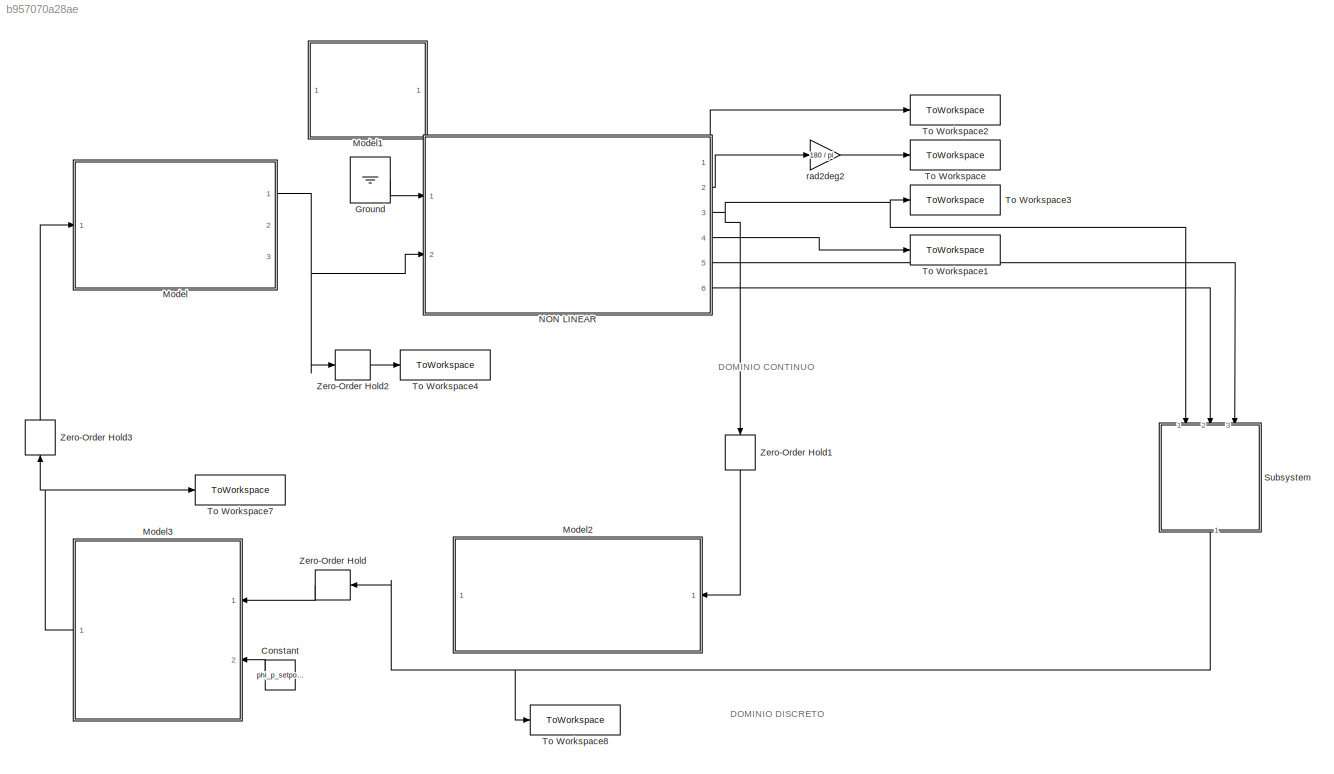
MODEL slx_b957070a28ae
KIND model
CONFIG AbsTol = auto
CONFIG EnableMultiTasking = off
CONFIG FixedStep = Ts
CONFIG MaxStep = auto
CONFIG MinStep = auto
CONFIG RelTol = 1e-3
CONFIG SampleTimeConstraint = Unconstrained
CONFIG Solver = FixedStepAuto
CONFIG SolverName = FixedStepAuto
CONFIG StartTime = 0.0
CONFIG StopTime = t_end
BLOCK [Constant] Constant
  Value = phi_p_setpoint
BLOCK [Ground] Ground
BLOCK [ModelReference] Model
  ModelNameDialog = MotorModelDiscrete.slx
  ModelReferenceVersion = 1.30
  Ports = [1, 3]
BLOCK [ModelReference] Model1
  Commented = on
  ModelNameDialog = MotorModelContinuos.slx
  ModelReferenceVersion = 1.27
  Ports = [1, 1]
BLOCK [ModelReference] Model2
  ModelNameDialog = sensor.slx
  ModelReferenceVersion = 1.9
  Ports = [1, 1]
BLOCK [ModelReference] Model3
  ModelNameDialog = controller.slx
  ModelReferenceVersion = 1.27
  Ports = [2, 1]
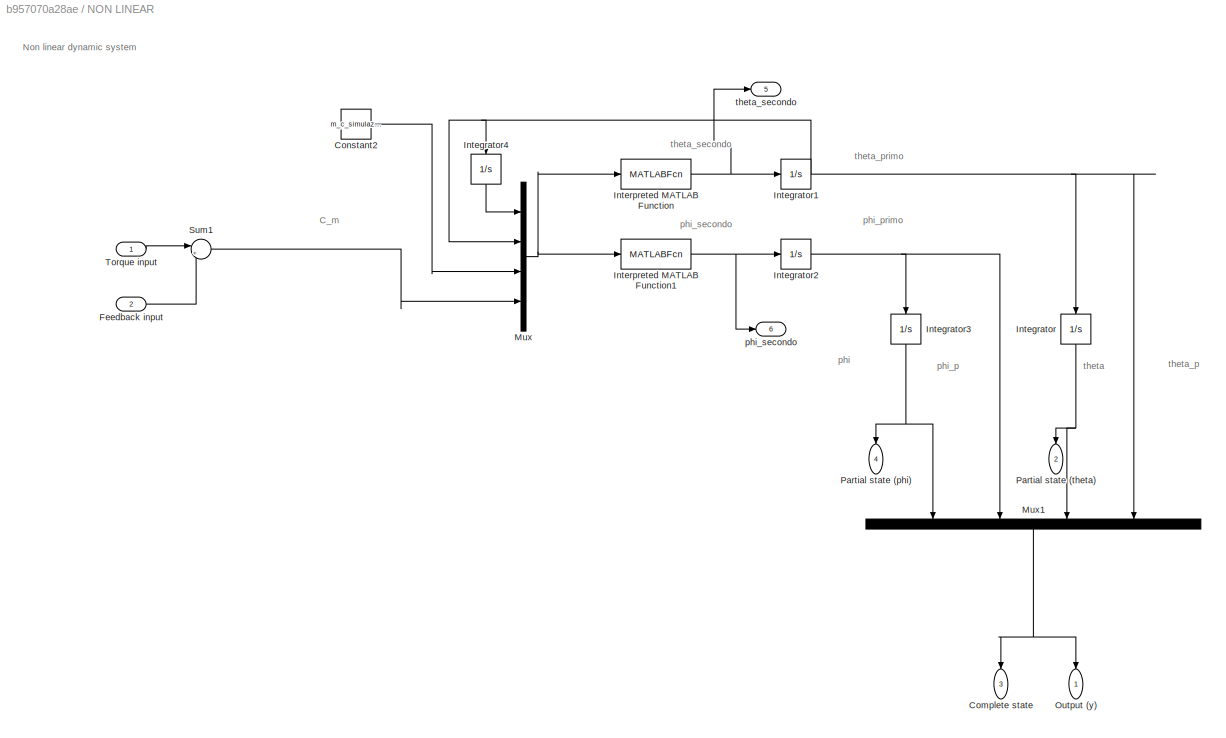
BLOCK [SubSystem] NON LINEAR
  Ports = [2, 6]
  RequestExecContextInheritance = off
BLOCK [Outport] NON LINEAR/Complete state 
  IconDisplay = Port number
  Port = 3
BLOCK [Constant] NON LINEAR/Constant2
  Value = m_c_simulazione
BLOCK [Inport] NON LINEAR/Feedback input
  IconDisplay = Port number
  Port = 2
  PortDimensions = 1
BLOCK [Integrator] NON LINEAR/Integrator
  InitialCondition = theta_iniziale
  Ports = [1, 1]
BLOCK [Integrator] NON LINEAR/Integrator1
  InitialCondition = theta_p_iniziale
  LowerSaturationLimit = -100
  Ports = [1, 1]
  UpperSaturationLimit = 100
BLOCK [Integrator] NON LINEAR/Integrator2
  InitialCondition = phi_p_iniziale
  Ports = [1, 1]
BLOCK [Integrator] NON LINEAR/Integrator3
  InitialCondition = phi_iniziale
  Ports = [1, 1]
BLOCK [Integrator] NON LINEAR/Integrator4
  InitialCondition = theta_iniziale
  Ports = [1, 1]
BLOCK [MATLABFcn] NON LINEAR/Interpreted MATLAB Function
  MATLABFcn = theta_secondo(u(3),u(1),u(2),u(4))
  OutputDimensions = 1
  Ports = [1, 1]
BLOCK [MATLABFcn] NON LINEAR/Interpreted MATLAB Function1
  MATLABFcn = phi_secondo(u(3),u(1),u(2),u(4))
  OutputDimensions = 1
  Ports = [1, 1]
BLOCK [Mux] NON LINEAR/Mux
  DisplayOption = signals
  Ports = [4, 1]
BLOCK [Mux] NON LINEAR/Mux1
  DisplayOption = bar
  Ports = [4, 1]
BLOCK [Outport] NON LINEAR/Output (y)
  IconDisplay = Port number
BLOCK [Outport] NON LINEAR/Partial state (phi)
  IconDisplay = Port number
  Port = 4
BLOCK [Outport] NON LINEAR/Partial state (theta)
  IconDisplay = Port number
  Port = 2
BLOCK [Sum] NON LINEAR/Sum1
  IconShape = round
  InputSameDT = off
  Inputs = |++
  OutDataTypeStr = Inherit: Inherit via internal rule
  Ports = [2, 1]
  SaturateOnIntegerOverflow = off
BLOCK [Inport] NON LINEAR/Torque input
  IconDisplay = Port number
  PortDimensions = 1
BLOCK [Outport] NON LINEAR/phi_secondo
  IconDisplay = Port number
  Port = 6
BLOCK [Outport] NON LINEAR/theta_secondo
  IconDisplay = Port number
  Port = 5
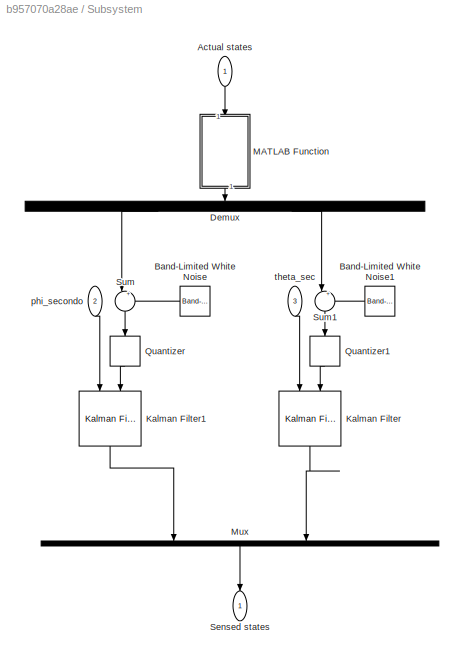
BLOCK [SubSystem] Subsystem
  Ports = [3, 1]
  RequestExecContextInheritance = off
BLOCK [Inport] Subsystem/Actual states
  IconDisplay = Port number
  PortDimensions = 4
  SampleTime = Ts
BLOCK [Reference] Subsystem/Band-Limited White Noise  REF=simulink/Sources/Band-Limited
White Noise
  Ports = [0, 1]
  SourceBlock = simulink/Sources/Band-Limited\nWhite Noise
  SourceProductBaseCode = SL
  SourceProductName = Simulink
  SourceType = Band-Limited White Noise.
BLOCK [Reference] Subsystem/Band-Limited White Noise1  REF=simulink/Sources/Band-Limited
White Noise
  Ports = [0, 1]
  SourceBlock = simulink/Sources/Band-Limited\nWhite Noise
  SourceProductBaseCode = SL
  SourceProductName = Simulink
  SourceType = Band-Limited White Noise.
BLOCK [Demux] Subsystem/Demux
  DisplayOption = bar
  Outputs = 2
  Ports = [1, 2]
BLOCK [Reference] Subsystem/Kalman Filter  REF=ctrlSharedLib/Kalman Filter
  Ports = [2, 1]
  SourceBlock = ctrlSharedLib/Kalman Filter
  SourceProductBaseCode = CT
  SourceProductName = Control System Toolbox
  SourceType = ctrlKalmanFilter
BLOCK [Reference] Subsystem/Kalman Filter1  REF=ctrlSharedLib/Kalman Filter
  Ports = [2, 1]
  SourceBlock = ctrlSharedLib/Kalman Filter
  SourceProductBaseCode = CT
  SourceProductName = Control System Toolbox
  SourceType = ctrlKalmanFilter
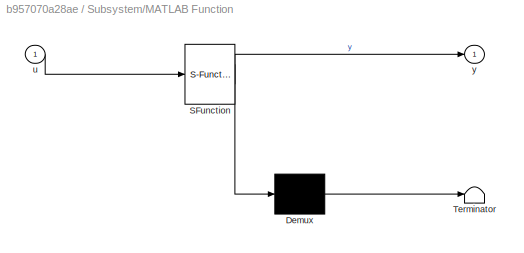
BLOCK [SubSystem] Subsystem/MATLAB Function
  ErrorFcn = Stateflow.Translate.translate
  PermitHierarchicalResolution = ExplicitOnly
  Ports = [1, 1]
  RequestExecContextInheritance = off
  SFBlockType = MATLAB Function
  TreatAsAtomicUnit = on
BLOCK [Demux] Subsystem/MATLAB Function/ Demux 
  Outputs = 1
  Ports = [1, 1]
BLOCK [S-Function] Subsystem/MATLAB Function/ SFunction 
  EnableBusSupport = on
  FunctionName = sf_sfun
  PortCounts = [1 2]
  Ports = [1, 2]
  SFcnIsStateOwnerBlock = off
  SFunctionDeploymentMode = off
  Tag = Stateflow S-Function 4
BLOCK [Terminator] Subsystem/MATLAB Function/ Terminator 
BLOCK [Inport] Subsystem/MATLAB Function/u
  IconDisplay = Port number
BLOCK [Outport] Subsystem/MATLAB Function/y
  IconDisplay = Port number
BLOCK [Mux] Subsystem/Mux
  DisplayOption = bar
  Inputs = 2
  Ports = [2, 1]
BLOCK [Quantizer] Subsystem/Quantizer
  QuantizationInterval = 1/sensitivity_encoder
BLOCK [Quantizer] Subsystem/Quantizer1
  QuantizationInterval = 1/sensitivity_giroscopio
BLOCK [Outport] Subsystem/Sensed states
  IconDisplay = Port number
BLOCK [Sum] Subsystem/Sum
  IconShape = round
  InputSameDT = off
  Inputs = |++
  OutDataTypeStr = Inherit: Inherit via internal rule
  Ports = [2, 1]
  SaturateOnIntegerOverflow = off
BLOCK [Sum] Subsystem/Sum1
  IconShape = round
  InputSameDT = off
  Inputs = |++
  OutDataTypeStr = Inherit: Inherit via internal rule
  Ports = [2, 1]
  SaturateOnIntegerOverflow = off
BLOCK [Inport] Subsystem/phi_secondo
  IconDisplay = Port number
  Port = 2
  PortDimensions = 1
  SampleTime = Ts
BLOCK [Inport] Subsystem/theta_sec 
  IconDisplay = Port number
  Port = 3
  PortDimensions = 1
  SampleTime = Ts
BLOCK [ToWorkspace] To Workspace
  FixptAsFi = on
  MaxDataPoints = inf
  Ports = [1]
  SampleTime = -1
  VariableName = theta_Clamped
BLOCK [ToWorkspace] To Workspace1
  FixptAsFi = on
  MaxDataPoints = inf
  Ports = [1]
  SampleTime = -1
  VariableName = phi_Clamped
BLOCK [ToWorkspace] To Workspace2
  FixptAsFi = on
  MaxDataPoints = inf
  Ports = [1]
  SampleTime = -1
  VariableName = Output
BLOCK [ToWorkspace] To Workspace3
  FixptAsFi = on
  MaxDataPoints = inf
  Ports = [1]
  SampleTime = -1
  VariableName = completeState
BLOCK [ToWorkspace] To Workspace4
  FixptAsFi = on
  MaxDataPoints = inf
  Ports = [1]
  SampleTime = -1
  VariableName = actualTorque
BLOCK [ToWorkspace] To Workspace7
  FixptAsFi = on
  MaxDataPoints = inf
  Ports = [1]
  SampleTime = -1
  VariableName = torqueRequested
BLOCK [ToWorkspace] To Workspace8
  FixptAsFi = on
  MaxDataPoints = inf
  Ports = [1]
  SampleTime = -1
  VariableName = sensor_state
BLOCK [ZeroOrderHold] Zero-Order Hold
  SampleTime = Ts
BLOCK [ZeroOrderHold] Zero-Order Hold1
  SampleTime = Ts
BLOCK [ZeroOrderHold] Zero-Order Hold2
  SampleTime = Ts
BLOCK [ZeroOrderHold] Zero-Order Hold3
  SampleTime = Ts
BLOCK [Gain] rad2deg2
  Gain = 180 / pi
  OutDataTypeStr = Inherit: Inherit via internal rule
  ParamDataTypeStr = Inherit: Inherit via internal rule
  SaturateOnIntegerOverflow = off
ANNOTATION (root): DOMINIO CONTINUO
ANNOTATION (root): DOMINIO DISCRETO
ANNOTATION NON LINEAR: Non linear dynamic system
ANNOTATION NON LINEAR: C_m
ANNOTATION NON LINEAR: phi
ANNOTATION NON LINEAR: phi_p
ANNOTATION NON LINEAR: phi_primo
ANNOTATION NON LINEAR: phi_secondo
ANNOTATION NON LINEAR: theta
ANNOTATION NON LINEAR: theta_p
ANNOTATION NON LINEAR: theta_primo
ANNOTATION NON LINEAR: theta_secondo
LINE Constant:1 -> Model3:2
LINE Ground:1 -> NON LINEAR:1
NET Model3:1 -> To Workspace7:1, Zero-Order Hold3:1
NET Model:1 -> NON LINEAR:2, Zero-Order Hold2:1
LINE NON LINEAR/Constant2:1 -> NON LINEAR/Mux:3
LINE NON LINEAR/Feedback input:1 -> NON LINEAR/Sum1:2
NET NON LINEAR/Integrator1:1 -> NON LINEAR/Integrator4:1, NON LINEAR/Integrator:1, NON LINEAR/Mux1:4, NON LINEAR/Mux:2
NET NON LINEAR/Integrator2:1 -> NON LINEAR/Integrator3:1, NON LINEAR/Mux1:2
NET NON LINEAR/Integrator3:1 -> NON LINEAR/Mux1:1, NON LINEAR/Partial state (phi):1
LINE NON LINEAR/Integrator4:1 -> NON LINEAR/Mux:1
NET NON LINEAR/Integrator:1 -> NON LINEAR/Mux1:3, NON LINEAR/Partial state (theta):1
NET NON LINEAR/Interpreted MATLAB Function1:1 -> NON LINEAR/Integrator2:1, NON LINEAR/phi_secondo:1
NET NON LINEAR/Interpreted MATLAB Function:1 -> NON LINEAR/Integrator1:1, NON LINEAR/theta_secondo:1
NET NON LINEAR/Mux1:1 -> NON LINEAR/Complete state :1, NON LINEAR/Output (y):1
NET NON LINEAR/Mux:1 -> NON LINEAR/Interpreted MATLAB Function1:1, NON LINEAR/Interpreted MATLAB Function:1
LINE NON LINEAR/Sum1:1 -> NON LINEAR/Mux:4
LINE NON LINEAR/Torque input:1 -> NON LINEAR/Sum1:1
LINE NON LINEAR:1 -> To Workspace2:1
LINE NON LINEAR:2 -> rad2deg2:1
NET NON LINEAR:3 -> Subsystem:1, To Workspace3:1, Zero-Order Hold1:1
LINE NON LINEAR:4 -> To Workspace1:1
LINE NON LINEAR:5 -> Subsystem:3
LINE NON LINEAR:6 -> Subsystem:2
LINE Subsystem/Actual states:1 -> Subsystem/MATLAB Function:1
LINE Subsystem/Band-Limited White Noise1:1 -> Subsystem/Sum1:2
LINE Subsystem/Band-Limited White Noise:1 -> Subsystem/Sum:2
LINE Subsystem/Demux:1 -> Subsystem/Sum:1
LINE Subsystem/Demux:2 -> Subsystem/Sum1:1
LINE Subsystem/Kalman Filter1:1 -> Subsystem/Mux:1
LINE Subsystem/Kalman Filter:1 -> Subsystem/Mux:2
LINE Subsystem/MATLAB Function:1 -> Subsystem/Demux:1
LINE Subsystem/Mux:1 -> Subsystem/Sensed states:1
LINE Subsystem/Quantizer1:1 -> Subsystem/Kalman Filter:2
LINE Subsystem/Quantizer:1 -> Subsystem/Kalman Filter1:2
LINE Subsystem/Sum1:1 -> Subsystem/Quantizer1:1
LINE Subsystem/Sum:1 -> Subsystem/Quantizer:1
LINE Subsystem/phi_secondo:1 -> Subsystem/Kalman Filter1:1
LINE Subsystem/theta_sec :1 -> Subsystem/Kalman Filter:1
NET Subsystem:1 -> To Workspace8:1, Zero-Order Hold:1
LINE Zero-Order Hold1:1 -> Model2:1
LINE Zero-Order Hold2:1 -> To Workspace4:1
LINE Zero-Order Hold3:1 -> Model:1
LINE Zero-Order Hold:1 -> Model3:1
LINE rad2deg2:1 -> To Workspace:1
note: NET lines group one-source signal fan-out (src -> all destinations, sorted); 1:1 wires keep LINE
CHART Subsystem/MATLAB Function states=1 transitions=1
  STATE_LABEL 'eML_blk_kernel()'
  STATE_LABEL 'SCRIPT:\nfunction y = fcn(u)\n\ny = [u(1),u(3)];\n'
